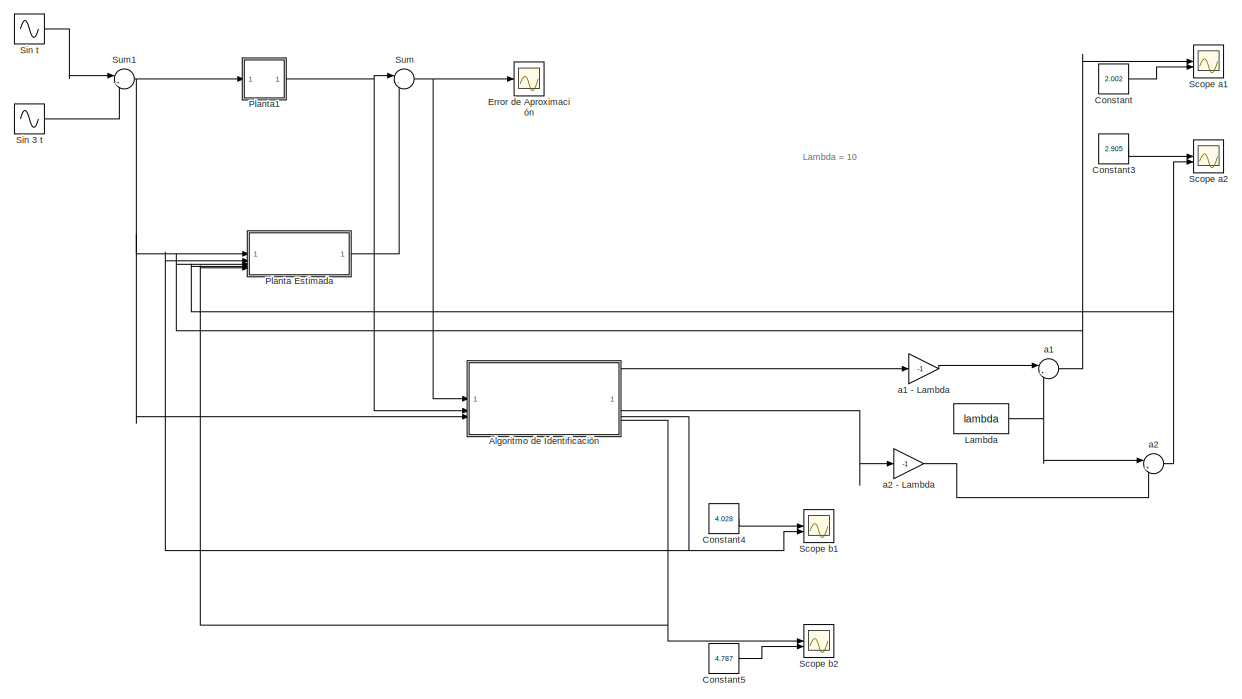
[diagram: root canvas - part 1/4, top center region]
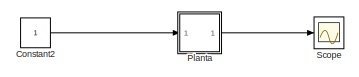
[diagram: root canvas - part 2/4, top left region]
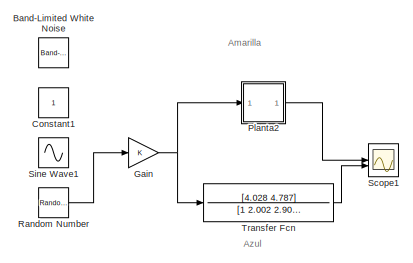
[diagram: root canvas - part 3/4, top right region]
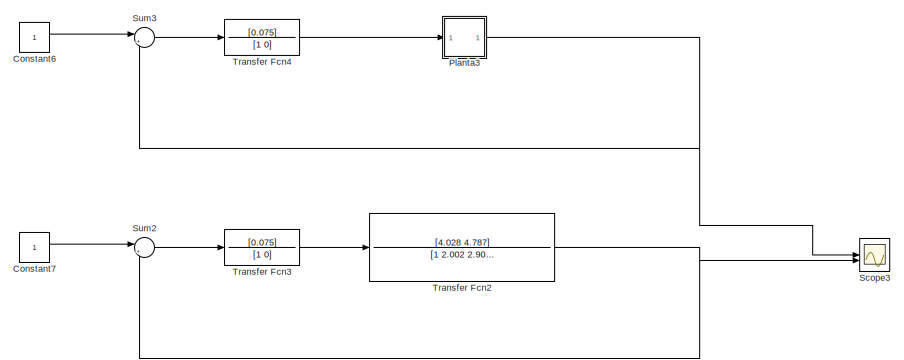
[diagram: root canvas - part 4/4, bottom center region]
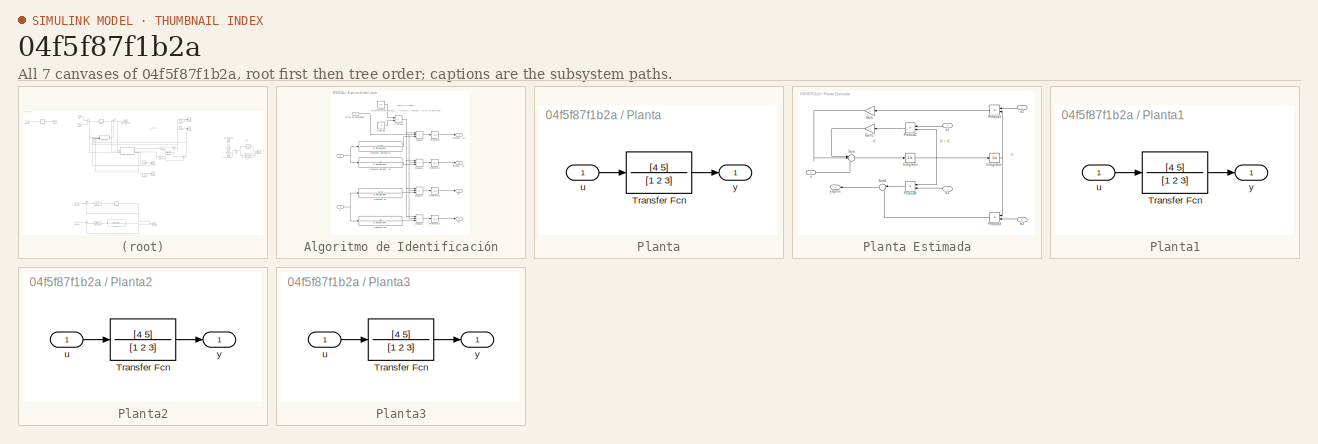
[diagram: thumbnail index - all 7 canvases of the model, root first then tree order]
MODEL slx_04f5f87f1b2a
KIND model
CONFIG AbsTol = auto
CONFIG EnableMultiTasking = off
CONFIG FixedStep = auto
CONFIG MaxStep = auto
CONFIG MinStep = auto
CONFIG RelTol = 1e-3
CONFIG SampleTimeConstraint = Unconstrained
CONFIG SolverName = VariableStepAuto
CONFIG StartTime = 0.0
CONFIG StopTime = 60
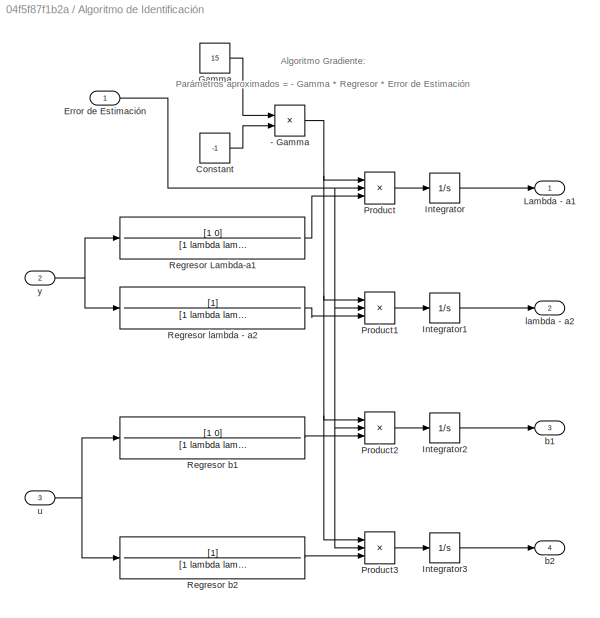
BLOCK [SubSystem] Algoritmo de Identificación
BLOCK [Product] Algoritmo de Identificación/- Gamma
BLOCK [Constant] Algoritmo de Identificación/Constant
  Value = -1
BLOCK [Inport] Algoritmo de Identificación/Error de Estimación
BLOCK [Constant] Algoritmo de Identificación/Gamma
  Value = 15
BLOCK [Integrator] Algoritmo de Identificación/Integrator
BLOCK [Integrator] Algoritmo de Identificación/Integrator1
BLOCK [Integrator] Algoritmo de Identificación/Integrator2
BLOCK [Integrator] Algoritmo de Identificación/Integrator3
BLOCK [Outport] Algoritmo de Identificación/Lambda - a1
BLOCK [Product] Algoritmo de Identificación/Product
  Inputs = 3
BLOCK [Product] Algoritmo de Identificación/Product1
  Inputs = 3
BLOCK [Product] Algoritmo de Identificación/Product2
  Inputs = 3
BLOCK [Product] Algoritmo de Identificación/Product3
  Inputs = 3
BLOCK [TransferFcn] Algoritmo de Identificación/Regresor Lambda-a1
  Denominator = [1 lambda lambda]
  Numerator = [1 0]
BLOCK [TransferFcn] Algoritmo de Identificación/Regresor b1
  Denominator = [1 lambda lambda]
  Numerator = [1 0]
BLOCK [TransferFcn] Algoritmo de Identificación/Regresor b2
  Denominator = [1 lambda lambda]
BLOCK [TransferFcn] Algoritmo de Identificación/Regresor lambda - a2
  Denominator = [1 lambda lambda]
BLOCK [Outport] Algoritmo de Identificación/b1
  Port = 3
BLOCK [Outport] Algoritmo de Identificación/b2
  Port = 4
BLOCK [Outport] Algoritmo de Identificación/lambda - a2
  Port = 2
BLOCK [Inport] Algoritmo de Identificación/u
  Port = 3
BLOCK [Inport] Algoritmo de Identificación/y
  Port = 2
BLOCK [Reference] Band-Limited White Noise  REF=simulink/Sources/Band-Limited
White Noise
  SourceBlock = simulink/Sources/Band-Limited\nWhite Noise
  SourceType = Band-Limited White Noise.
BLOCK [Constant] Constant
  Value = 2.002
BLOCK [Constant] Constant1
BLOCK [Constant] Constant2
BLOCK [Constant] Constant3
  Value = 2.905
BLOCK [Constant] Constant4
  Value = 4.028
BLOCK [Constant] Constant5
  Value = 4.787
BLOCK [Constant] Constant6
BLOCK [Constant] Constant7
BLOCK [Scope] Error de Aproximación
  Floating = off
  NumInputPorts = 1
  ScopeSpecificationString = Simulink.scopes.TimeScopeBlockCfg('CurrentConfiguration', extmgr.ConfigurationSet(extmgr.Configuration('Core','General UI',true,'FigureColor',[1 1 1]),extmgr.Configuration('Core','Source UI',true),extmgr.Configuration('Sources','WiredSimulink',true,'DataLoggingVariableName','ScopeData1'),extmgr.Configuration('Visuals','Time Domain',true,'SerializedDisplays',{struct('MinYLimReal','-3.41002','MaxYLi...<+1869ch>
BLOCK [Gain] Gain
BLOCK [Constant] Lambda
  Value = lambda
BLOCK [SubSystem] Planta
  Permissions = NoReadOrWrite
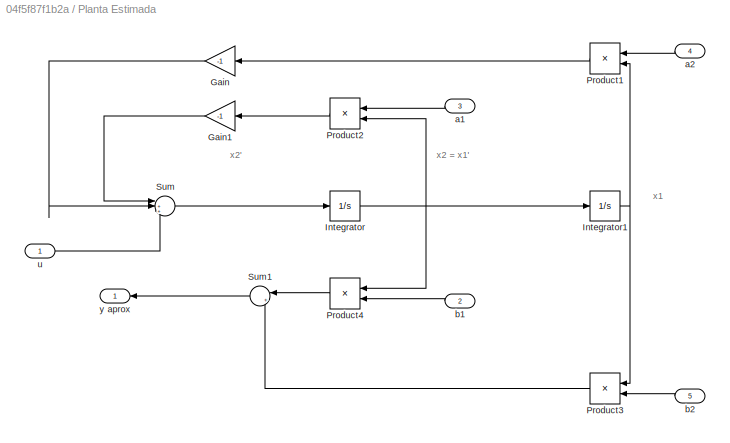
BLOCK [SubSystem] Planta Estimada
BLOCK [Gain] Planta Estimada/Gain
  Gain = -1
  NameLocation = top
BLOCK [Gain] Planta Estimada/Gain1
  Gain = -1
  NameLocation = top
BLOCK [Integrator] Planta Estimada/Integrator
BLOCK [Integrator] Planta Estimada/Integrator1
BLOCK [Product] Planta Estimada/Product1
  NameLocation = top
BLOCK [Product] Planta Estimada/Product2
  NameLocation = top
BLOCK [Product] Planta Estimada/Product3
  NameLocation = top
BLOCK [Product] Planta Estimada/Product4
  NameLocation = top
BLOCK [Sum] Planta Estimada/Sum
  Inputs = |+++
BLOCK [Sum] Planta Estimada/Sum1
  Inputs = |++
  NameLocation = top
BLOCK [Inport] Planta Estimada/a1
  NameLocation = top
  Port = 3
BLOCK [Inport] Planta Estimada/a2
  Port = 4
BLOCK [Inport] Planta Estimada/b1
  NameLocation = top
  Port = 2
BLOCK [Inport] Planta Estimada/b2
  NameLocation = top
  Port = 5
BLOCK [Inport] Planta Estimada/u
BLOCK [Outport] Planta Estimada/y aprox
  NameLocation = right
BLOCK [TransferFcn] Planta/Transfer Fcn
  Denominator = [1 2 3]
  Numerator = [4 5]
BLOCK [Inport] Planta/u
BLOCK [Outport] Planta/y
BLOCK [SubSystem] Planta1
  Permissions = NoReadOrWrite
BLOCK [TransferFcn] Planta1/Transfer Fcn
  Denominator = [1 2 3]
  Numerator = [4 5]
BLOCK [Inport] Planta1/u
BLOCK [Outport] Planta1/y
BLOCK [SubSystem] Planta2
  Permissions = NoReadOrWrite
BLOCK [TransferFcn] Planta2/Transfer Fcn
  Denominator = [1 2 3]
  Numerator = [4 5]
BLOCK [Inport] Planta2/u
BLOCK [Outport] Planta2/y
BLOCK [SubSystem] Planta3
  Permissions = NoReadOrWrite
BLOCK [TransferFcn] Planta3/Transfer Fcn
  Denominator = [1 2 3]
  Numerator = [4 5]
BLOCK [Inport] Planta3/u
BLOCK [Outport] Planta3/y
BLOCK [RandomNumber] Random Number
  SampleTime = 0.1
BLOCK [Scope] Scope
  Floating = off
  NumInputPorts = 1
  ScopeSpecificationString = Simulink.scopes.TimeScopeBlockCfg('CurrentConfiguration', extmgr.ConfigurationSet(extmgr.Configuration('Core','General UI',true),extmgr.Configuration('Core','Source UI',true),extmgr.Configuration('Sources','WiredSimulink',true,'DataLoggingVariableName','ScopeData1'),extmgr.Configuration('Visuals','Time Domain',true,'SerializedDisplays',{struct('MinYLimReal','-0.27786','MaxYLimReal','2.50073','YLab...<+1394ch>
BLOCK [Scope] Scope a1
  Floating = off
  NumInputPorts = 2
  ScopeSpecificationString = Simulink.scopes.TimeScopeBlockCfg('CurrentConfiguration', extmgr.ConfigurationSet(extmgr.Configuration('Core','General UI',true,'FigureColor',[1 1 1]),extmgr.Configuration('Core','Source UI',true),extmgr.Configuration('Sources','WiredSimulink',true),extmgr.Configuration('Visuals','Time Domain',true,'SerializedDisplays',{struct('MinYLimReal','-0.60585','MaxYLimReal','11.17843','YLabelReal','','MinY...<+1847ch>
BLOCK [Scope] Scope a2
  Floating = off
  NumInputPorts = 2
  ScopeSpecificationString = Simulink.scopes.TimeScopeBlockCfg('CurrentConfiguration', extmgr.ConfigurationSet(extmgr.Configuration('Core','General UI',true,'FigureColor',[1 1 1]),extmgr.Configuration('Core','Source UI',true),extmgr.Configuration('Sources','WiredSimulink',true,'DataLoggingVariableName','ScopeData2'),extmgr.Configuration('Visuals','Time Domain',true,'SerializedDisplays',{struct('MinYLimReal','1.3746','MaxYLimR...<+1882ch>
BLOCK [Scope] Scope b1
  Floating = off
  NumInputPorts = 2
  ScopeSpecificationString = Simulink.scopes.TimeScopeBlockCfg('CurrentConfiguration', extmgr.ConfigurationSet(extmgr.Configuration('Core','General UI',true,'FigureColor',[1 1 1]),extmgr.Configuration('Core','Source UI',true),extmgr.Configuration('Sources','WiredSimulink',true,'DataLoggingVariableName','ScopeData3'),extmgr.Configuration('Visuals','Time Domain',true,'SerializedDisplays',{struct('MinYLimReal','-0.59389','MaxYLi...<+1911ch>
BLOCK [Scope] Scope b2
  Floating = off
  NumInputPorts = 2
  ScopeSpecificationString = Simulink.scopes.TimeScopeBlockCfg('CurrentConfiguration', extmgr.ConfigurationSet(extmgr.Configuration('Core','General UI',true,'FigureColor',[1 1 1]),extmgr.Configuration('Core','Source UI',true),extmgr.Configuration('Sources','WiredSimulink',true,'DataLoggingVariableName','ScopeData4'),extmgr.Configuration('Visuals','Time Domain',true,'SerializedDisplays',{struct('MinYLimReal','-0.62834','MaxYLi...<+2003ch>
BLOCK [Scope] Scope1
  Floating = off
  NumInputPorts = 2
  ScopeSpecificationString = Simulink.scopes.TimeScopeBlockCfg('CurrentConfiguration', extmgr.ConfigurationSet(extmgr.Configuration('Core','General UI',true,'FigureColor',[1 1 1]),extmgr.Configuration('Core','Source UI',true),extmgr.Configuration('Sources','WiredSimulink',true,'DataLoggingVariableName','ScopeData5'),extmgr.Configuration('Visuals','Time Domain',true,'SerializedDisplays',{struct('MinYLimReal','-2.62195','MaxYLi...<+1897ch>
BLOCK [Scope] Scope3
  Floating = off
  NumInputPorts = 2
  ScopeSpecificationString = Simulink.scopes.TimeScopeBlockCfg('CurrentConfiguration', extmgr.ConfigurationSet(extmgr.Configuration('Core','General UI',true,'FigureColor',[1 1 1]),extmgr.Configuration('Core','Source UI',true),extmgr.Configuration('Sources','WiredSimulink',true,'DataLoggingVariableName','ScopeData2'),extmgr.Configuration('Visuals','Time Domain',true,'SerializedDisplays',{struct('MinYLimReal','-0.12492','MaxYLi...<+1534ch>
BLOCK [Sin] Sin 3 t
  SampleTime = 0
BLOCK [Sin] Sin t
  SampleTime = 0
BLOCK [Sin] Sine Wave1
  SampleTime = 0
BLOCK [Sum] Sum
  Inputs = |-+
BLOCK [Sum] Sum1
  Inputs = |++
BLOCK [Sum] Sum2
  Inputs = |+-
BLOCK [Sum] Sum3
  Inputs = |+-
BLOCK [TransferFcn] Transfer Fcn
  Denominator = [1 2.002 2.905]
  Numerator = [4.028 4.787]
BLOCK [TransferFcn] Transfer Fcn2
  Denominator = [1 2.002 2.905]
  Numerator = [4.028 4.787]
BLOCK [TransferFcn] Transfer Fcn3
  Denominator = [1 0]
  Numerator = [0.075]
BLOCK [TransferFcn] Transfer Fcn4
  Denominator = [1 0]
  Numerator = [0.075]
BLOCK [Sum] a1 
  Inputs = |++
BLOCK [Gain] a1 - Lambda
  Gain = -1
BLOCK [Sum] a2
  Inputs = |++
BLOCK [Gain] a2 - Lambda
  Gain = -1
ANNOTATION (root): Lambda = 10
ANNOTATION (root): Amarilla
ANNOTATION (root): Azul
ANNOTATION Algoritmo de Identificación: Algoritmo Gradiente: Parámetros aproximados = - Gamma * Regresor * Error de Estimación
ANNOTATION Planta Estimada: x1
ANNOTATION Planta Estimada: x2 = x1'
ANNOTATION Planta Estimada: x2'
NET Algoritmo de Identificación/- Gamma:1 -> Algoritmo de Identificación/Product1:1, Algoritmo de Identificación/Product2:1, Algoritmo de Identificación/Product3:1, Algoritmo de Identificación/Product:1
LINE Algoritmo de Identificación/Constant:1 -> Algoritmo de Identificación/- Gamma:2
NET Algoritmo de Identificación/Error de Estimación:1 -> Algoritmo de Identificación/Product1:2, Algoritmo de Identificación/Product2:2, Algoritmo de Identificación/Product3:2, Algoritmo de Identificación/Product:2
LINE Algoritmo de Identificación/Gamma:1 -> Algoritmo de Identificación/- Gamma:1
LINE Algoritmo de Identificación/Integrator1:1 -> Algoritmo de Identificación/lambda - a2:1
LINE Algoritmo de Identificación/Integrator2:1 -> Algoritmo de Identificación/b1:1
LINE Algoritmo de Identificación/Integrator3:1 -> Algoritmo de Identificación/b2:1
LINE Algoritmo de Identificación/Integrator:1 -> Algoritmo de Identificación/Lambda - a1:1
LINE Algoritmo de Identificación/Product1:1 -> Algoritmo de Identificación/Integrator1:1
LINE Algoritmo de Identificación/Product2:1 -> Algoritmo de Identificación/Integrator2:1
LINE Algoritmo de Identificación/Product3:1 -> Algoritmo de Identificación/Integrator3:1
LINE Algoritmo de Identificación/Product:1 -> Algoritmo de Identificación/Integrator:1
LINE Algoritmo de Identificación/Regresor Lambda-a1:1 -> Algoritmo de Identificación/Product:3
LINE Algoritmo de Identificación/Regresor b1:1 -> Algoritmo de Identificación/Product2:3
LINE Algoritmo de Identificación/Regresor b2:1 -> Algoritmo de Identificación/Product3:3
LINE Algoritmo de Identificación/Regresor lambda - a2:1 -> Algoritmo de Identificación/Product1:3
NET Algoritmo de Identificación/u:1 -> Algoritmo de Identificación/Regresor b1:1, Algoritmo de Identificación/Regresor b2:1
NET Algoritmo de Identificación/y:1 -> Algoritmo de Identificación/Regresor Lambda-a1:1, Algoritmo de Identificación/Regresor lambda - a2:1
LINE Algoritmo de Identificación:1 -> a1 - Lambda:1
LINE Algoritmo de Identificación:2 -> a2 - Lambda:1
NET Algoritmo de Identificación:3 -> Planta Estimada:2, Scope b1:2
NET Algoritmo de Identificación:4 -> Planta Estimada:5, Scope b2:1
LINE Constant2:1 -> Planta:1
LINE Constant3:1 -> Scope a2:1
LINE Constant4:1 -> Scope b1:1
LINE Constant5:1 -> Scope b2:2
LINE Constant6:1 -> Sum3:1
LINE Constant7:1 -> Sum2:1
LINE Constant:1 -> Scope a1:2
NET Gain:1 -> Planta2:1, Transfer Fcn:1
NET Lambda:1 -> a1 :2, a2:1
LINE Planta Estimada/Gain1:1 -> Planta Estimada/Sum:1
LINE Planta Estimada/Gain:1 -> Planta Estimada/Sum:2
NET Planta Estimada/Integrator1:1 -> Planta Estimada/Product1:2, Planta Estimada/Product3:1
NET Planta Estimada/Integrator:1 -> Planta Estimada/Integrator1:1, Planta Estimada/Product2:2, Planta Estimada/Product4:1
LINE Planta Estimada/Product1:1 -> Planta Estimada/Gain:1
LINE Planta Estimada/Product2:1 -> Planta Estimada/Gain1:1
LINE Planta Estimada/Product3:1 -> Planta Estimada/Sum1:2
LINE Planta Estimada/Product4:1 -> Planta Estimada/Sum1:1
LINE Planta Estimada/Sum1:1 -> Planta Estimada/y aprox:1
LINE Planta Estimada/Sum:1 -> Planta Estimada/Integrator:1
LINE Planta Estimada/a1:1 -> Planta Estimada/Product2:1
LINE Planta Estimada/a2:1 -> Planta Estimada/Product1:1
LINE Planta Estimada/b1:1 -> Planta Estimada/Product4:2
LINE Planta Estimada/b2:1 -> Planta Estimada/Product3:2
LINE Planta Estimada/u:1 -> Planta Estimada/Sum:3
LINE Planta Estimada:1 -> Sum:2
LINE Planta/Transfer Fcn:1 -> Planta/y:1
LINE Planta/u:1 -> Planta/Transfer Fcn:1
LINE Planta1/Transfer Fcn:1 -> Planta1/y:1
LINE Planta1/u:1 -> Planta1/Transfer Fcn:1
NET Planta1:1 -> Algoritmo de Identificación:2, Sum:1
LINE Planta2/Transfer Fcn:1 -> Planta2/y:1
LINE Planta2/u:1 -> Planta2/Transfer Fcn:1
LINE Planta2:1 -> Scope1:1
LINE Planta3/Transfer Fcn:1 -> Planta3/y:1
LINE Planta3/u:1 -> Planta3/Transfer Fcn:1
NET Planta3:1 -> Scope3:1, Sum3:2
LINE Planta:1 -> Scope:1
LINE Random Number:1 -> Gain:1
LINE Sin 3 t:1 -> Sum1:2
LINE Sin t:1 -> Sum1:1
NET Sum1:1 -> Algoritmo de Identificación:3, Planta Estimada:1, Planta1:1
LINE Sum2:1 -> Transfer Fcn3:1
LINE Sum3:1 -> Transfer Fcn4:1
NET Sum:1 -> Algoritmo de Identificación:1, Error de Aproximación:1
NET Transfer Fcn2:1 -> Scope3:2, Sum2:2
LINE Transfer Fcn3:1 -> Transfer Fcn2:1
LINE Transfer Fcn4:1 -> Planta3:1
LINE Transfer Fcn:1 -> Scope1:2
LINE a1 - Lambda:1 -> a1 :1
NET a1 :1 -> Planta Estimada:3, Scope a1:1
LINE a2 - Lambda:1 -> a2:2
NET a2:1 -> Planta Estimada:4, Scope a2:2
note: NET lines group one-source signal fan-out (src -> all destinations, sorted); 1:1 wires keep LINE
